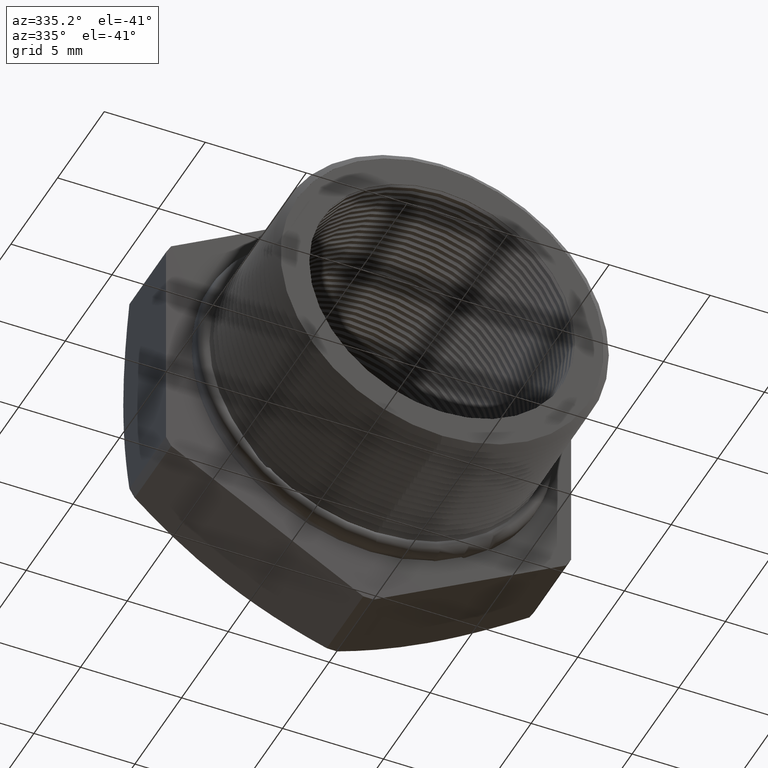
[diagram: clean part render]
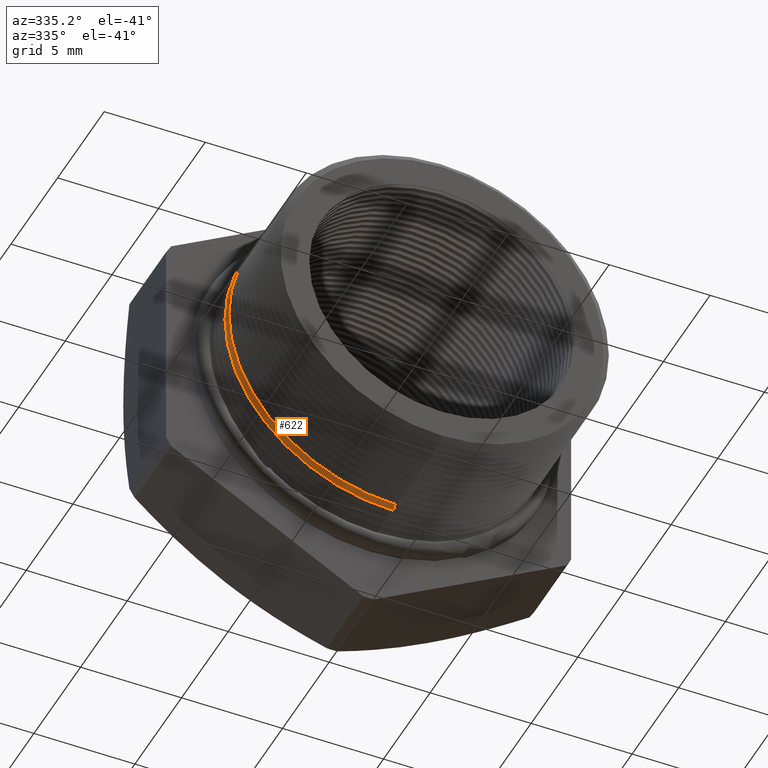
[diagram: same view with one face highlighted and labeled with its STEP entity id]
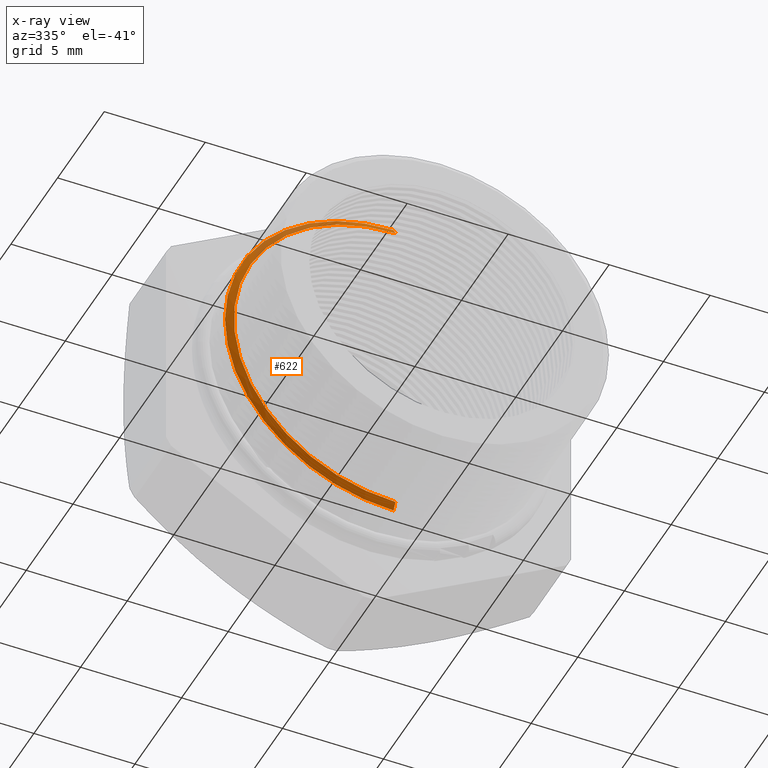
[diagram: x-ray of the same camera — body ghosted, the highlighted face saturated]
A machine part, auxiliary view. The second image highlights one B-rep face of the part: STEP entity #622.
The next image is the same camera in x-ray: the body ghosted, the highlighted face saturated — about 14% of this face is hidden behind the body in this view.
In plain terms, the highlighted conical surface has half-angle 60 deg.
Its self-contained STEP definition (entity closure, byte-faithful):
#462 = EDGE_CURVE ( 'NONE', #1256, #1255, #3686, .T. ) ;
#577 = EDGE_CURVE ( 'NONE', #1259, #1260, #3888, .T. ) ;
#581 = EDGE_LOOP ( 'NONE', ( #582, #614, #615, #609 ) ) ;
#582 = ORIENTED_EDGE ( 'NONE', *, *, #1258, .F. ) ;
#609 = ORIENTED_EDGE ( 'NONE', *, *, #577, .F. ) ;
#614 = ORIENTED_EDGE ( 'NONE', *, *, #462, .T. ) ;
#615 = ORIENTED_EDGE ( 'NONE', *, *, #1321, .T. ) ;
#622 = ADVANCED_FACE ( 'NONE', ( #3957 ), #3952, .T. ) ;
#1255 = VERTEX_POINT ( 'NONE', #4977 ) ;
#1256 = VERTEX_POINT ( 'NONE', #4976 ) ;
#1258 = EDGE_CURVE ( 'NONE', #1256, #1259, #4975, .T. ) ;
#1259 = VERTEX_POINT ( 'NONE', #4971 ) ;
#1260 = VERTEX_POINT ( 'NONE', #4970 ) ;
#1321 = EDGE_CURVE ( 'NONE', #1255, #1260, #5106, .T. ) ;
#3683 = DIRECTION ( 'NONE',  ( -0.0000000000000000000, 1.000000000000000000, -0.0000000000000000000 ) ) ;
#3684 = CARTESIAN_POINT ( 'NONE',  ( 0.0000000000000000000, 0.1140025363558870400, 0.0000000000000000000 ) ) ;
#3685 = AXIS2_PLACEMENT_3D ( 'NONE', #3684, #3683, #3744 ) ;
#3686 = CIRCLE ( 'NONE', #3685, 0.3150000000000000000 ) ;
#3744 = DIRECTION ( 'NONE',  ( 0.0000000000000000000, 0.0000000000000000000, 1.000000000000000000 ) ) ;
#3884 = DIRECTION ( 'NONE',  ( 0.0000000000000000000, 0.0000000000000000000, 1.000000000000000000 ) ) ;
#3885 = DIRECTION ( 'NONE',  ( -0.0000000000000000000, 1.000000000000000000, -0.0000000000000000000 ) ) ;
#3886 = CARTESIAN_POINT ( 'NONE',  ( 0.0000000000000000000, 0.1219548905829479900, 0.0000000000000000000 ) ) ;
#3887 = AXIS2_PLACEMENT_3D ( 'NONE', #3886, #3885, #3884 ) ;
#3888 = CIRCLE ( 'NONE', #3887, 0.3287738815610546400 ) ;
#3948 = DIRECTION ( 'NONE',  ( 0.0000000000000000000, 0.0000000000000000000, 1.000000000000000000 ) ) ;
#3949 = DIRECTION ( 'NONE',  ( -0.0000000000000000000, 1.000000000000000000, -0.0000000000000000000 ) ) ;
#3950 = CARTESIAN_POINT ( 'NONE',  ( 0.0000000000000000000, 0.1219548905829479900, 0.0000000000000000000 ) ) ;
#3951 = AXIS2_PLACEMENT_3D ( 'NONE', #3950, #3949, #3948 ) ;
#3952 = CONICAL_SURFACE ( 'NONE', #3951, 0.3287738815610546400, 1.047197551196596700 ) ;
#3957 = FACE_OUTER_BOUND ( 'NONE', #581, .T. ) ;
#4970 = CARTESIAN_POINT ( 'NONE',  ( 4.026318816969966200E-017, 0.1219548905829479900, 0.3287738815610546400 ) ) ;
#4971 = CARTESIAN_POINT ( 'NONE',  ( 0.0000000000000000000, 0.1219548905829479900, -0.3287738815610546400 ) ) ;
#4972 = DIRECTION ( 'NONE',  ( 1.060575238724906300E-016, 0.5000000000000008900, -0.8660254037844380400 ) ) ;
#4973 = VECTOR ( 'NONE', #4972, 39.37007874015748100 ) ;
#4974 = CARTESIAN_POINT ( 'NONE',  ( 4.026318816969965600E-017, 0.1219548905829479900, -0.3287738815610546400 ) ) ;
#4975 = LINE ( 'NONE', #4974, #4973 ) ;
#4976 = CARTESIAN_POINT ( 'NONE',  ( 0.0000000000000000000, 0.1140025363558870400, -0.3150000000000000000 ) ) ;
#4977 = CARTESIAN_POINT ( 'NONE',  ( 3.857637417314162700E-017, 0.1140025363558870400, 0.3150000000000000000 ) ) ;
#5103 = DIRECTION ( 'NONE',  ( 0.0000000000000000000, 0.5000000000000008900, 0.8660254037844380400 ) ) ;
#5104 = VECTOR ( 'NONE', #5103, 39.37007874015748100 ) ;
#5105 = CARTESIAN_POINT ( 'NONE',  ( 0.0000000000000000000, 0.1219548905829479900, 0.3287738815610546400 ) ) ;
#5106 = LINE ( 'NONE', #5105, #5104 ) ;